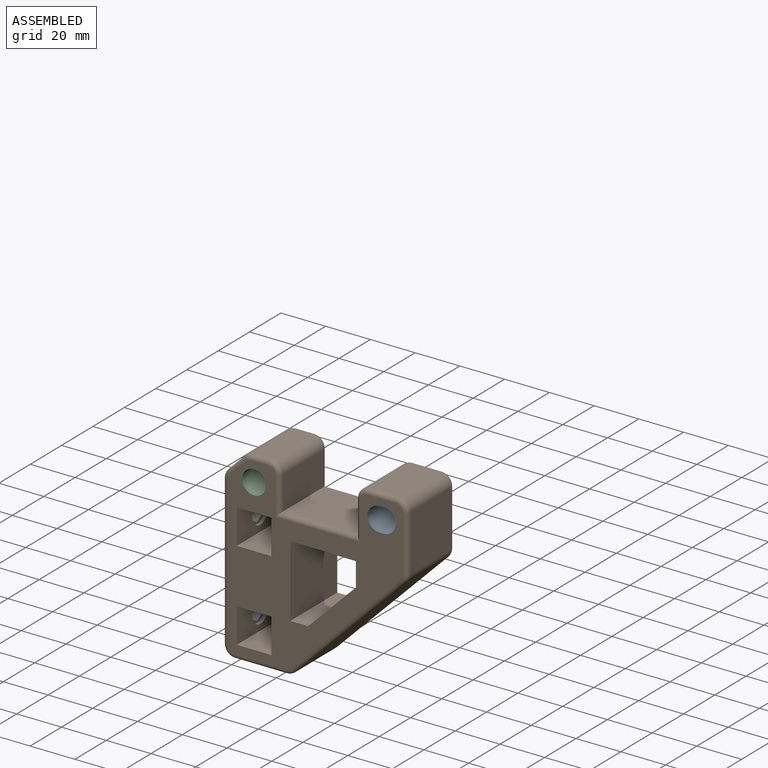
[diagram: assembled view]
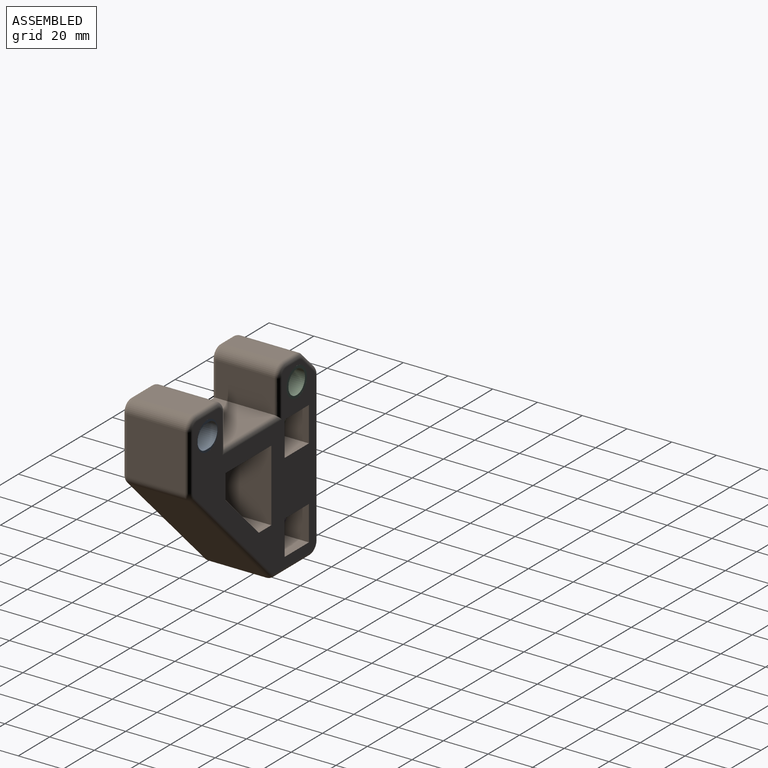
[diagram: assembled view, second angle]
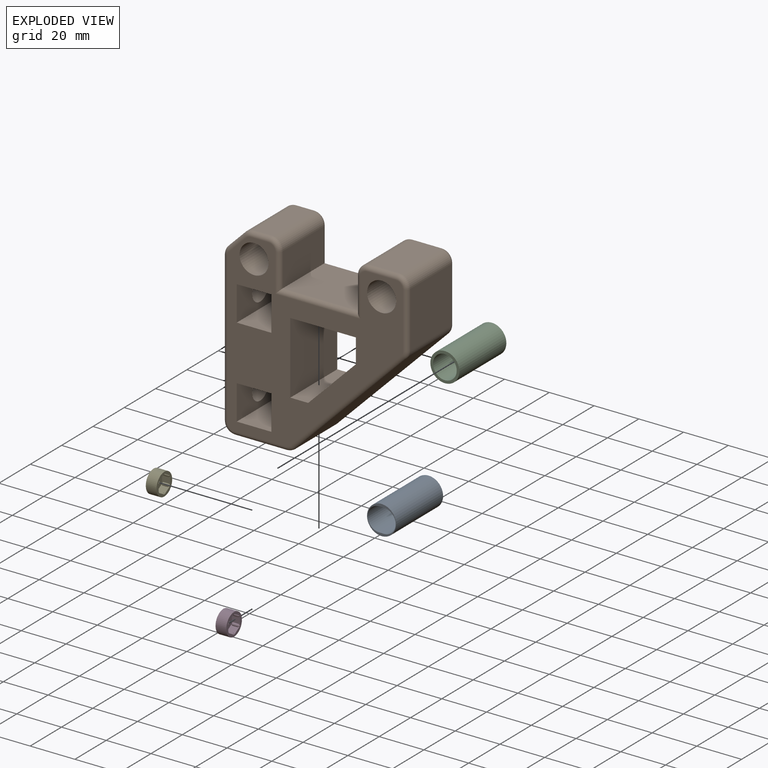
[diagram: exploded view]
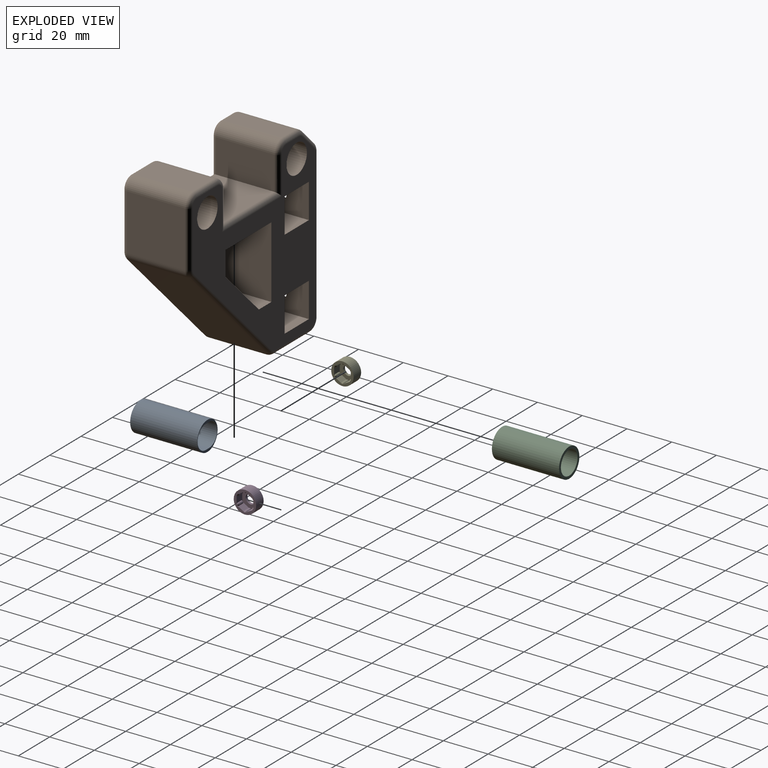
[diagram: exploded view, second angle]
ASSEMBLY  parts=5 mates=4
PART A: 7 faces, bbox 13x13x30 mm
  f0: cylinder r=5.3mm len=30mm, axis (0,0,-1), area 499.5mm2, adj f1,f3,f5,f6
  f1: plane 30x2mm, normal (0,1,0), area 60mm2, adj f0,f2,f5,f6
  f2: cylinder r=5.3mm len=30mm, axis (0,0,-1), area 499.5mm2, adj f1,f3,f5,f6
  f3: plane 30x2mm, normal (0,-1,0), area 60mm2, adj f0,f2,f5,f6
  f4: cylinder r=6.5mm len=30mm, axis (0,0,-1), area 1225.2mm2, adj f5,f6
  f5: plane 13x13mm, normal (0,0,-1), area 23.3mm2, adj f0,f1,f2,f3,f4
  f6: plane 13x13mm, normal (0,0,1), area 23.3mm2, adj f0,f1,f2,f3,f4
PART B: 85 faces, bbox 83.3x30x85.3 mm
  f0: plane 32.18x30mm, normal (1,0,0), area 965.3mm2, adj f1,f13,f17,f18
  f1: plane 30x29.32mm, normal (0,0,-1), area 879.5mm2, adj f0,f2,f17,f18
  f2: plane 30x10.86mm, normal (-1,0,0), area 325.7mm2, adj f1,f3,f17,f18
  f3: plane 30x21.32mm, normal (-0.71,0,0.71), area 904.5mm2, adj f2,f13,f17,f18
  f4: plane 26x7.93mm, normal (0,0,1), area 206.2mm2, adj f41,f48,f58,f80
  f5: plane 26x7.57mm, normal (-0.71,0,0.71), area 278.4mm2, adj f41,f42,f54,f76
  f6: plane 66.93x26mm, normal (-1,0,0), area 1583.1mm2, adj f39,f40,f42,f43,f50,f72
  f7: plane 26x22.93mm, normal (0,0,-1), area 596.2mm2, adj f43,f44,f51,f68
  f8: plane 49.57x49.57mm, normal (0.71,0,-0.71), area 1822.7mm2, adj f44,f45,f55,f69
  f9: plane 26x24.93mm, normal (1,0,0), area 648.2mm2, adj f45,f46,f59,f73
  f10: plane 26x13mm, normal (0,0,1), area 338mm2, adj f46,f47,f63,f77
  f11: plane 26x15mm, normal (-1,0,0), area 390mm2, adj f12,f47,f66,f81
  f12: plane 34x26mm, normal (0,0,1), area 884mm2, adj f11,f16,f64,f83
  f13: plane 30x8mm, normal (0,0,1), area 240mm2, adj f0,f3,f17,f18
  f14: cylinder r=6.5mm len=30mm, axis (0,1,0), area 1225.2mm2, adj f17,f18
  f15: cylinder r=6.5mm len=30mm, axis (0,1,0), area 1225.2mm2, adj f17,f18
  f16: plane 26x15mm, normal (1,0,0), area 390mm2, adj f12,f48,f62,f84
  f17: plane 80.5x78.5mm, normal (0,-1,0), area 2727.9mm2, adj f0,f1,f2,f3,f13,f14,f15,f19
  f18: plane 80.5x78.5mm, normal (0,1,0), area 2727.9mm2, adj f0,f1,f2,f3,f13,f14,f15,f19
  f19: plane 30x15.5mm, normal (0,0,1), area 465mm2, adj f17,f18,f20,f22,f23
  f20: plane 30x15.5mm, normal (-1,0,0), area 465mm2, adj f17,f18,f19,f21,f25
  f21: plane 30x15.5mm, normal (0,0,-1), area 465mm2, adj f17,f18,f20,f22,f24
  f22: plane 30x15.5mm, normal (1,0,0), area 386.5mm2, adj f17,f18,f19,f21,f40
  f23: cylinder r=0.05mm len=1.25mm, axis (0,0,1), area 0.4mm2, adj f19,f26
  f24: cylinder r=0.05mm len=1.25mm, axis (0,0,1), area 0.4mm2, adj f21,f28
  f25: cylinder r=0.05mm len=1.25mm, axis (-1,0,0), area 0.4mm2, adj f20,f27
  f26: plane 0.1x0.1mm, normal (0,0,1), area 0mm2, adj f23
  f27: plane 0.1x0.1mm, normal (-1,0,0), area 0mm2, adj f25
  f28: plane 0.1x0.1mm, normal (0,0,-1), area 0mm2, adj f24
  f29: plane 30x15.5mm, normal (0,0,1), area 465mm2, adj f17,f18,f30,f32,f33
  f30: plane 30x15.5mm, normal (-1,0,0), area 465mm2, adj f17,f18,f29,f31,f35
  f31: plane 30x15.5mm, normal (0,0,-1), area 465mm2, adj f17,f18,f30,f32,f34
  f32: plane 30x15.5mm, normal (1,0,0), area 386.5mm2, adj f17,f18,f29,f31,f39
  f33: cylinder r=0.05mm len=1.25mm, axis (0,0,1), area 0.4mm2, adj f29,f36
  f34: cylinder r=0.05mm len=1.25mm, axis (0,0,1), area 0.4mm2, adj f31,f38
  f35: cylinder r=0.05mm len=1.25mm, axis (-1,0,0), area 0.4mm2, adj f30,f37
  f36: plane 0.1x0.1mm, normal (0,0,1), area 0mm2, adj f33
  f37: plane 0.1x0.1mm, normal (-1,0,0), area 0mm2, adj f35
  f38: plane 0.1x0.1mm, normal (0,0,-1), area 0mm2, adj f34
  f39: cylinder r=5mm len=10mm, axis (-1,0,0), area 196.3mm2, adj f6,f32
  f40: cylinder r=5mm len=10mm, axis (-1,0,0), area 196.3mm2, adj f6,f22
  f41: cylinder r=5mm len=26mm, axis (0,-1,0), area 102.1mm2, adj f4,f5,f56,f78
  f42: cylinder r=5mm len=26mm, axis (0,-1,0), area 102.1mm2, adj f5,f6,f52,f74
  f43: cylinder r=5mm len=26mm, axis (0,1,0), area 204.2mm2, adj f6,f7,f49,f70
  f44: cylinder r=5mm len=26mm, axis (0,1,0), area 102.1mm2, adj f7,f8,f53,f67
  f45: cylinder r=5mm len=26mm, axis (0,1,0), area 102.1mm2, adj f8,f9,f57,f71
  f46: cylinder r=5mm len=26mm, axis (0,1,0), area 204.2mm2, adj f9,f10,f61,f75
  f47: cylinder r=5mm len=26mm, axis (0,1,0), area 204.2mm2, adj f10,f11,f65,f79
  f48: cylinder r=5mm len=26mm, axis (0,1,0), area 204.2mm2, adj f4,f16,f60,f82
  f49: torus R=3mm, axis (0,-1,0), area 21.1mm2, adj f17,f43,f50,f51
  f50: cylinder r=2mm len=66.93mm, axis (0,0,1), area 210.3mm2, adj f6,f17,f49,f52
  f51: cylinder r=2mm len=22.93mm, axis (-1,0,0), area 72mm2, adj f7,f17,f49,f53
  f52: torus R=3mm, axis (0,-1,0), area 10.5mm2, adj f17,f42,f50,f54
  f53: torus R=3mm, axis (0,-1,0), area 10.5mm2, adj f17,f44,f51,f55
  f54: cylinder r=2mm len=8.99mm, axis (0.71,0,0.71), area 33.6mm2, adj f5,f17,f52,f56
  f55: cylinder r=2mm len=50.99mm, axis (-0.71,0,-0.71), area 220.2mm2, adj f8,f17,f53,f57
  f56: torus R=3mm, axis (0,-1,0), area 10.5mm2, adj f17,f41,f54,f58
  f57: torus R=3mm, axis (0,-1,0), area 10.5mm2, adj f17,f45,f55,f59
  f58: cylinder r=2mm len=7.93mm, axis (1,0,0), area 24.9mm2, adj f4,f17,f56,f60
  f59: cylinder r=2mm len=24.93mm, axis (0,0,-1), area 78.3mm2, adj f9,f17,f57,f61
  f60: torus R=3mm, axis (0,-1,0), area 21.1mm2, adj f17,f48,f58,f62
  f61: torus R=3mm, axis (0,-1,0), area 21.1mm2, adj f17,f46,f59,f63
  f62: cylinder r=2mm len=17mm, axis (0,0,-1), area 49.4mm2, adj f16,f17,f60,f64
  f63: cylinder r=2mm len=13mm, axis (1,0,0), area 40.8mm2, adj f10,f17,f61,f65
  f64: cylinder r=2mm len=38mm, axis (1,0,0), area 111.4mm2, adj f12,f17,f62,f66
  f65: torus R=3mm, axis (0,-1,0), area 21.1mm2, adj f17,f47,f63,f66
  f66: cylinder r=2mm len=17mm, axis (0,0,1), area 49.4mm2, adj f11,f17,f64,f65
  f67: torus R=3mm, axis (0,-1,0), area 10.5mm2, adj f18,f44,f68,f69
  f68: cylinder r=2mm len=22.93mm, axis (1,0,0), area 72mm2, adj f7,f18,f67,f70
  f69: cylinder r=2mm len=50.99mm, axis (0.71,0,0.71), area 220.2mm2, adj f8,f18,f67,f71
  f70: torus R=3mm, axis (0,-1,0), area 21.1mm2, adj f18,f43,f68,f72
  f71: torus R=3mm, axis (0,-1,0), area 10.5mm2, adj f18,f45,f69,f73
  f72: cylinder r=2mm len=66.93mm, axis (0,0,-1), area 210.3mm2, adj f6,f18,f70,f74
  f73: cylinder r=2mm len=24.93mm, axis (0,0,1), area 78.3mm2, adj f9,f18,f71,f75
  f74: torus R=3mm, axis (0,-1,0), area 10.5mm2, adj f18,f42,f72,f76
  f75: torus R=3mm, axis (0,-1,0), area 21.1mm2, adj f18,f46,f73,f77
  f76: cylinder r=2mm len=8.99mm, axis (-0.71,0,-0.71), area 33.6mm2, adj f5,f18,f74,f78
  f77: cylinder r=2mm len=13mm, axis (-1,0,0), area 40.8mm2, adj f10,f18,f75,f79
  f78: torus R=3mm, axis (0,-1,0), area 10.5mm2, adj f18,f41,f76,f80
  f79: torus R=3mm, axis (0,-1,0), area 21.1mm2, adj f18,f47,f77,f81
  f80: cylinder r=2mm len=7.93mm, axis (-1,0,0), area 24.9mm2, adj f4,f18,f78,f82
  f81: cylinder r=2mm len=17mm, axis (0,0,-1), area 49.4mm2, adj f11,f18,f79,f83
  f82: torus R=3mm, axis (0,-1,0), area 21.1mm2, adj f18,f48,f80,f84
  f83: cylinder r=2mm len=38mm, axis (-1,0,0), area 111.4mm2, adj f12,f18,f81,f84
  f84: cylinder r=2mm len=17mm, axis (0,0,1), area 49.4mm2, adj f16,f18,f82,f83
PART C: 4 faces, bbox 13x13x30 mm
  f0: cylinder r=5.3mm len=30mm, axis (0,0,-1), area 999mm2, adj f2,f3
  f1: cylinder r=6.5mm len=30mm, axis (0,0,-1), area 1225.2mm2, adj f2,f3
  f2: plane 13x13mm, normal (0,0,-1), area 44.5mm2, adj f0,f1
  f3: plane 13x13mm, normal (0,0,1), area 44.5mm2, adj f0,f1
PART D: 29 faces, bbox 10x10x4.8 mm
  f0: plane 3.77x3.6mm, normal (0,-1,0), area 10.5mm2, adj f7,f8,f9,f10,f17,f18,f19,f26
  f1: plane 3.6x3.27mm, normal (-0.87,-0.5,0), area 10.5mm2, adj f7,f8,f9,f10,f14,f15,f16,f26
  f2: plane 3.6x3.27mm, normal (-0.87,0.5,0), area 10.5mm2, adj f7,f11,f12,f13,f14,f15,f16,f26
  f3: plane 3.77x3.6mm, normal (0,1,0), area 10.5mm2, adj f7,f11,f12,f13,f23,f24,f25,f26
  f4: plane 3.6x3.27mm, normal (0.87,0.5,0), area 10.5mm2, adj f7,f20,f21,f22,f23,f24,f25,f26
  f5: cylinder r=5mm len=10mm, axis (0,0,-1), area 150.8mm2, adj f7,f27
  f6: plane 3.6x3.27mm, normal (0.87,-0.5,0), area 10.5mm2, adj f7,f17,f18,f19,f20,f21,f22,f26
  f7: plane 10x10mm, normal (0,0,1), area 31.5mm2, adj f0,f1,f2,f3,f4,f5,f6,f9
  f8: cylinder r=0.75mm len=2.6mm, axis (0,0,-1), area 4.1mm2, adj f0,f1,f9,f10
  f9: cone r=0.25mm half-angle=45deg, axis (0,0,-1), area 0.7mm2, adj f0,f1,f7,f8
  f10: cone r=0.75mm half-angle=45deg, axis (0,0,1), area 0.7mm2, adj f0,f1,f8,f26
  f11: cylinder r=0.75mm len=2.6mm, axis (0,0,-1), area 4.1mm2, adj f2,f3,f12,f13
  f12: cone r=0.25mm half-angle=45deg, axis (0,0,-1), area 0.7mm2, adj f2,f3,f7,f11
  f13: cone r=0.75mm half-angle=45deg, axis (0,0,1), area 0.7mm2, adj f2,f3,f11,f26
  f14: cylinder r=0.75mm len=2.6mm, axis (0,0,-1), area 4.1mm2, adj f1,f2,f15,f16
  f15: cone r=0.25mm half-angle=45deg, axis (0,0,-1), area 0.7mm2, adj f1,f2,f7,f14
  f16: cone r=0.75mm half-angle=45deg, axis (0,0,1), area 0.7mm2, adj f1,f2,f14,f26
  f17: cone r=0.75mm half-angle=45deg, axis (0,0,1), area 0.7mm2, adj f0,f6,f19,f26
  f18: cone r=0.25mm half-angle=45deg, axis (0,0,-1), area 0.7mm2, adj f0,f6,f7,f19
  f19: cylinder r=0.75mm len=2.6mm, axis (0,0,-1), area 4.1mm2, adj f0,f6,f17,f18
  f20: cone r=0.75mm half-angle=45deg, axis (0,0,1), area 0.7mm2, adj f4,f6,f22,f26
  f21: cone r=0.25mm half-angle=45deg, axis (0,0,-1), area 0.7mm2, adj f4,f6,f7,f22
  f22: cylinder r=0.75mm len=2.6mm, axis (0,0,-1), area 4.1mm2, adj f4,f6,f20,f21
  f23: cylinder r=0.75mm len=2.6mm, axis (0,0,-1), area 4.1mm2, adj f3,f4,f24,f25
  f24: cone r=0.25mm half-angle=45deg, axis (0,0,-1), area 0.7mm2, adj f3,f4,f7,f23
  f25: cone r=0.75mm half-angle=45deg, axis (0,0,1), area 0.7mm2, adj f3,f4,f23,f26
  f26: plane 8.29x7.4mm, normal (0,0,1), area 31.8mm2, adj f0,f1,f2,f3,f4,f6,f10,f13
  f27: plane 10x10mm, normal (0,0,-1), area 63.3mm2, adj f5,f28
  f28: cylinder r=2.2mm len=4.4mm, axis (0,0,-1), area 16.6mm2, adj f26,f27
PART E: same geometry as D
PLACE A rot(axis=(1,0,0),90deg) t=(-16.3,11,-42.7)mm
PLACE B t=(-2.12,11,-4.61)mm
PLACE C rot(axis=(1,0,0),90deg) t=(-48.3,11,-42.7)mm
PLACE D rot(axis=(0,1,0),90deg) t=(-43.42,-4,-80.45)mm
PLACE E rot(axis=(0,1,0),90deg) t=(-43.42,-4,-40.45)mm
MATE fastened E.f5 <-> B.f35  axis (-1,0,0) through (-44.62,-4,-40.45)mm
MATE fastened C.f0 <-> B.f15  axis (0,-1,0) through (-30.62,-19,-20.45)mm
MATE fastened A.f4 <-> B.f14  axis (0,-1,0) through (26.38,-19,-20.45)mm
MATE fastened D.f5 <-> B.f25  axis (-1,0,0) through (-44.62,-4,-80.45)mm
